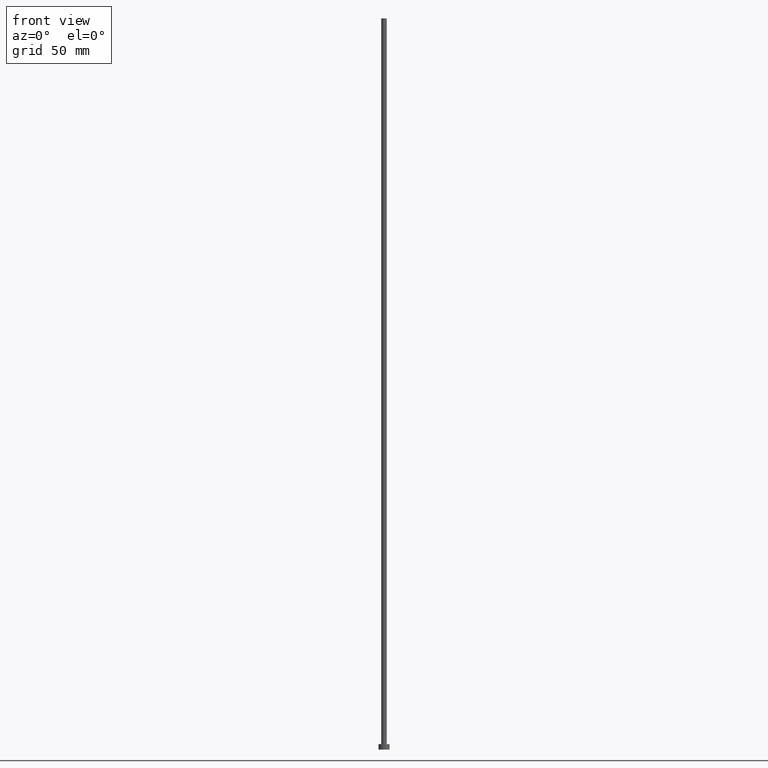
[diagram: clean part render]
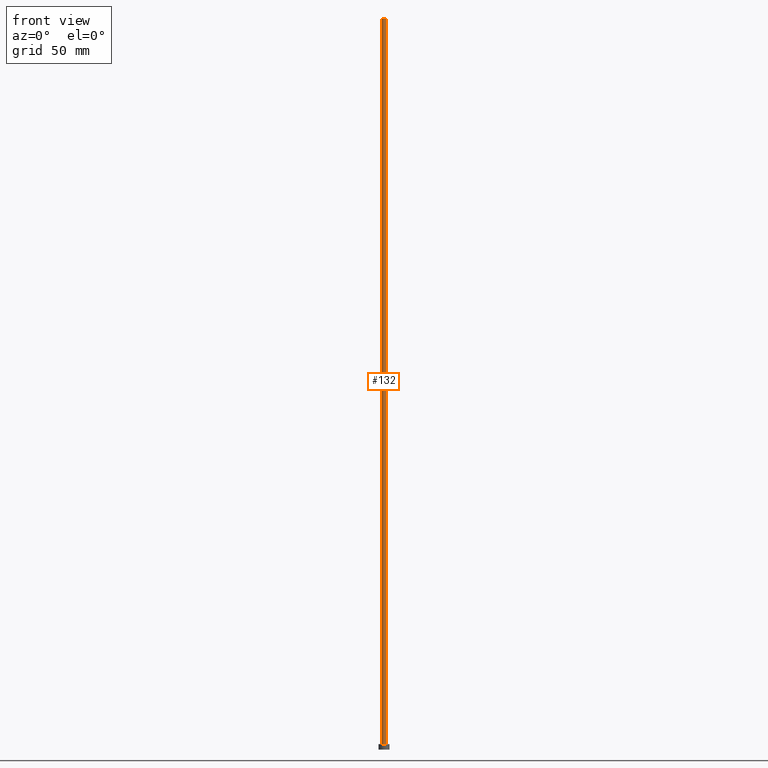
[diagram: same view with one face highlighted and labeled with its STEP entity id]
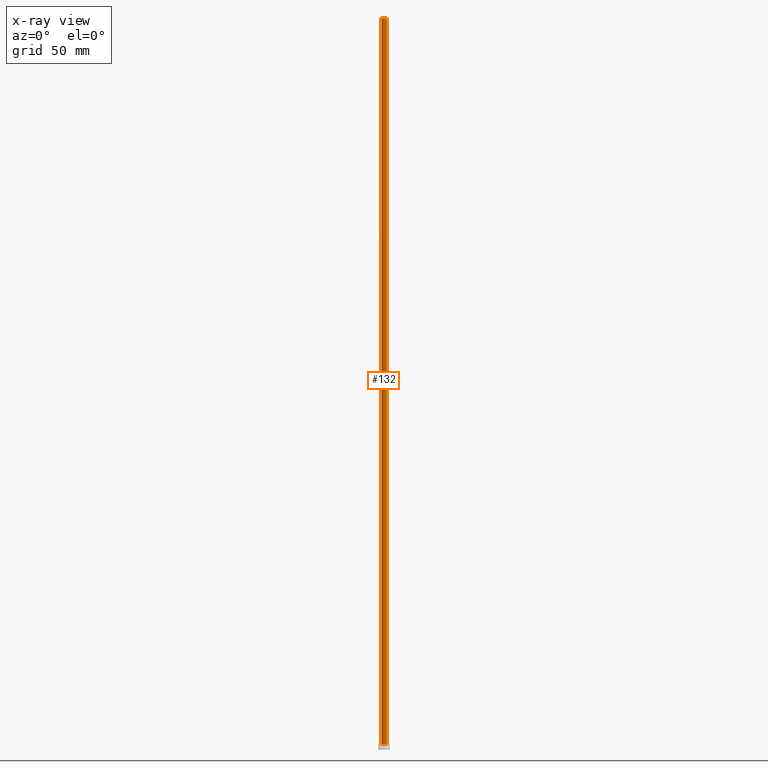
[diagram: x-ray of the same camera — body ghosted, the highlighted face saturated]
A machine part, front view. The second image highlights one B-rep face of the part: STEP entity #132.
The next image is the same camera in x-ray: the body ghosted, the highlighted face saturated — about 0% of this face is hidden behind the body in this view.
In plain terms, the highlighted cylindrical surface (edge-blend (fillet) strip) has radius 1.5 mm, axis along (-0, -0, -1).
Its self-contained STEP definition (entity closure, byte-faithful):
#1 = EDGE_LOOP ( 'NONE', ( #248, #34, #23, #120 ) ) ;
#2 = DIRECTION ( 'NONE',  ( 1.000000000000000000, 0.000000000000000000, 0.000000000000000000 ) ) ;
#8 = VERTEX_POINT ( 'NONE', #52 ) ;
#23 = ORIENTED_EDGE ( 'NONE', *, *, #108, .T. ) ;
#24 = DIRECTION ( 'NONE',  ( -0.000000000000000000, -0.000000000000000000, -1.000000000000000000 ) ) ;
#32 = VECTOR ( 'NONE', #24, 1000.000000000000000 ) ;
#34 = ORIENTED_EDGE ( 'NONE', *, *, #57, .F. ) ;
#38 = CARTESIAN_POINT ( 'NONE',  ( -1.500000000000000222, 0.000000000000000000, 3.000000000000000000 ) ) ;
#41 = AXIS2_PLACEMENT_3D ( 'NONE', #136, #82, #2 ) ;
#52 = CARTESIAN_POINT ( 'NONE',  ( 1.500000000000000222, 1.836970198721030181E-16, 3.000000000000000000 ) ) ;
#57 = EDGE_CURVE ( 'NONE', #221, #175, #107, .T. ) ;
#62 = DIRECTION ( 'NONE',  ( -1.000000000000000000, 0.000000000000000000, 0.000000000000000000 ) ) ;
#67 = CARTESIAN_POINT ( 'NONE',  ( 1.500000000000000222, 1.836970198721030181E-16, 400.0000000000000000 ) ) ;
#78 = DIRECTION ( 'NONE',  ( -0.000000000000000000, -0.000000000000000000, -1.000000000000000000 ) ) ;
#79 = FACE_OUTER_BOUND ( 'NONE', #1, .T. ) ;
#81 = CARTESIAN_POINT ( 'NONE',  ( 0.000000000000000000, 0.000000000000000000, 400.0000000000000000 ) ) ;
#82 = DIRECTION ( 'NONE',  ( 0.000000000000000000, 0.000000000000000000, 1.000000000000000000 ) ) ;
#84 = VECTOR ( 'NONE', #78, 1000.000000000000000 ) ;
#107 = CIRCLE ( 'NONE', #249, 1.500000000000000222 ) ;
#108 = EDGE_CURVE ( 'NONE', #221, #110, #133, .T. ) ;
#110 = VERTEX_POINT ( 'NONE', #38 ) ;
#120 = ORIENTED_EDGE ( 'NONE', *, *, #226, .T. ) ;
#125 = DIRECTION ( 'NONE',  ( 0.000000000000000000, 0.000000000000000000, 1.000000000000000000 ) ) ;
#132 = ADVANCED_FACE ( 'NONE', ( #79 ), #251, .T. ) ;
#133 = LINE ( 'NONE', #254, #84 ) ;
#136 = CARTESIAN_POINT ( 'NONE',  ( 0.000000000000000000, 0.000000000000000000, 3.000000000000000000 ) ) ;
#139 = CIRCLE ( 'NONE', #41, 1.500000000000000222 ) ;
#144 = CARTESIAN_POINT ( 'NONE',  ( 0.000000000000000000, 0.000000000000000000, 400.0000000000000000 ) ) ;
#151 = DIRECTION ( 'NONE',  ( -0.000000000000000000, -0.000000000000000000, -1.000000000000000000 ) ) ;
#152 = EDGE_CURVE ( 'NONE', #175, #8, #239, .T. ) ;
#160 = CARTESIAN_POINT ( 'NONE',  ( -1.500000000000000222, 0.000000000000000000, 400.0000000000000000 ) ) ;
#175 = VERTEX_POINT ( 'NONE', #194 ) ;
#194 = CARTESIAN_POINT ( 'NONE',  ( 1.500000000000000222, 1.836970198721030181E-16, 400.0000000000000000 ) ) ;
#199 = DIRECTION ( 'NONE',  ( 1.000000000000000000, 0.000000000000000000, 0.000000000000000000 ) ) ;
#221 = VERTEX_POINT ( 'NONE', #160 ) ;
#226 = EDGE_CURVE ( 'NONE', #110, #8, #139, .T. ) ;
#239 = LINE ( 'NONE', #67, #32 ) ;
#248 = ORIENTED_EDGE ( 'NONE', *, *, #152, .F. ) ;
#249 = AXIS2_PLACEMENT_3D ( 'NONE', #144, #125, #199 ) ;
#251 = CYLINDRICAL_SURFACE ( 'NONE', #253, 1.500000000000000222 ) ;
#253 = AXIS2_PLACEMENT_3D ( 'NONE', #81, #151, #62 ) ;
#254 = CARTESIAN_POINT ( 'NONE',  ( -1.500000000000000222, 0.000000000000000000, 400.0000000000000000 ) ) ;